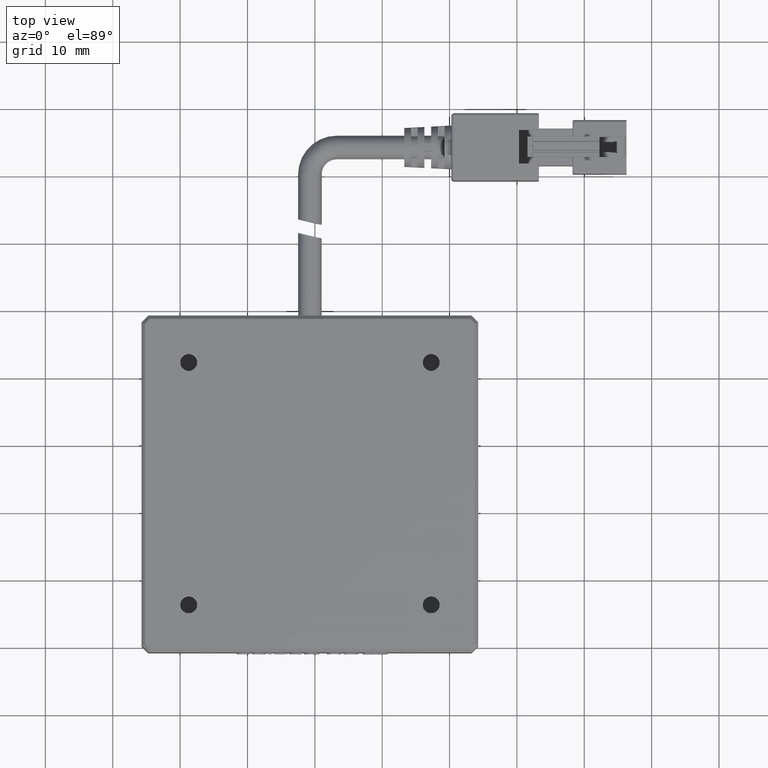
[diagram: clean part render]
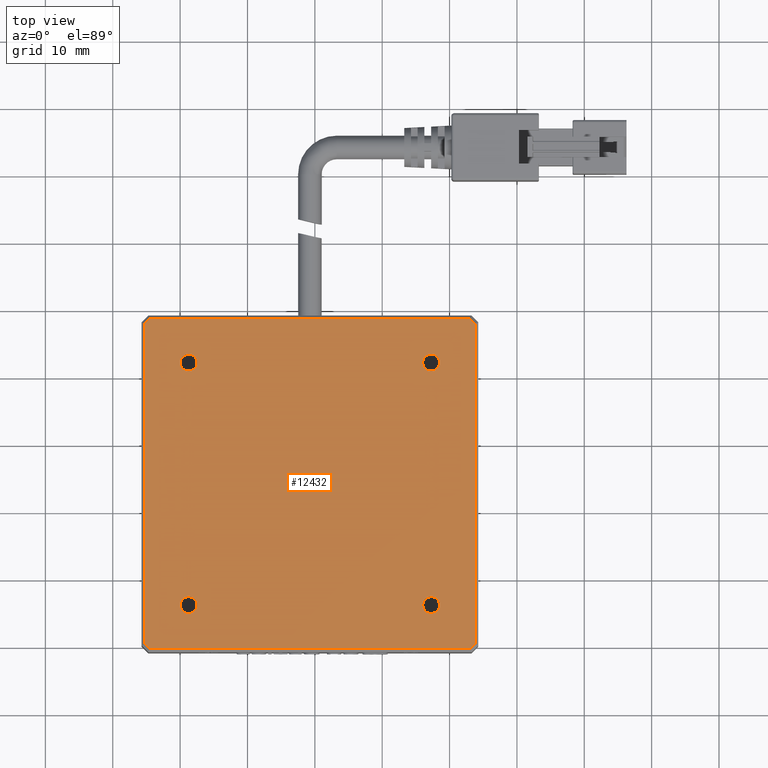
[diagram: same view with one face highlighted and labeled with its STEP entity id]
A machine part, top view. The second image highlights one B-rep face of the part: STEP entity #12432.
In plain terms, the highlighted planar face has unit normal (0, 0, -1).
Its self-contained STEP definition (entity closure, byte-faithful):
#100 = EDGE_CURVE ( 'NONE', #7006, #9659, #36711, .T. ) ;
#404 = EDGE_CURVE ( 'NONE', #3694, #6840, #39669, .T. ) ;
#1345 = FACE_BOUND ( 'NONE', #25588, .T. ) ;
#1472 = AXIS2_PLACEMENT_3D ( 'NONE', #22653, #3146, #25906 ) ;
#1871 = CIRCLE ( 'NONE', #36450, 1.250000000000001100 ) ;
#2097 = VERTEX_POINT ( 'NONE', #21587 ) ;
#2286 = LINE ( 'NONE', #36958, #18543 ) ;
#2449 = DIRECTION ( 'NONE',  ( 1.000000000000000000, 0.0000000000000000000, 0.0000000000000000000 ) ) ;
#2601 = LINE ( 'NONE', #28094, #35139 ) ;
#3146 = DIRECTION ( 'NONE',  ( -0.0000000000000000000, -0.0000000000000000000, 1.000000000000000000 ) ) ;
#3174 = ORIENTED_EDGE ( 'NONE', *, *, #7853, .F. ) ;
#3335 = CARTESIAN_POINT ( 'NONE',  ( 43.76702531645570800, 14.21113924050633600, 2.250000000000000900 ) ) ;
#3694 = VERTEX_POINT ( 'NONE', #35536 ) ;
#3701 = CIRCLE ( 'NONE', #16103, 1.250000000000001100 ) ;
#4103 = CARTESIAN_POINT ( 'NONE',  ( 43.05991853526914800, 38.71113924050632000, 2.250000000000000900 ) ) ;
#4314 = VERTEX_POINT ( 'NONE', #42024 ) ;
#4674 = DIRECTION ( 'NONE',  ( 1.000000000000000000, -0.0000000000000000000, 0.0000000000000000000 ) ) ;
#4865 = DIRECTION ( 'NONE',  ( 0.0000000000000000000, 0.0000000000000000000, -1.000000000000000000 ) ) ;
#4970 = CARTESIAN_POINT ( 'NONE',  ( -5.232974683544267900, -9.581753978307105500, 2.250000000000001800 ) ) ;
#5012 = AXIS2_PLACEMENT_3D ( 'NONE', #13184, #35948, #16455 ) ;
#5147 = AXIS2_PLACEMENT_3D ( 'NONE', #9560, #32311, #12826 ) ;
#5924 = CARTESIAN_POINT ( 'NONE',  ( -5.232974683544267900, 38.00403245931977400, 2.250000000000000000 ) ) ;
#6073 = VERTEX_POINT ( 'NONE', #21219 ) ;
#6489 = EDGE_LOOP ( 'NONE', ( #34504, #10557 ) ) ;
#6791 = CARTESIAN_POINT ( 'NONE',  ( 38.51702531645572200, 32.21113924050634100, 2.250000000000000900 ) ) ;
#6840 = VERTEX_POINT ( 'NONE', #19124 ) ;
#7006 = VERTEX_POINT ( 'NONE', #16556 ) ;
#7361 = ORIENTED_EDGE ( 'NONE', *, *, #36655, .F. ) ;
#7767 = ORIENTED_EDGE ( 'NONE', *, *, #100, .F. ) ;
#7853 = EDGE_CURVE ( 'NONE', #35405, #4314, #17793, .T. ) ;
#7990 = PLANE ( 'NONE',  #29038 ) ;
#8013 = LINE ( 'NONE', #3335, #40557 ) ;
#8108 = AXIS2_PLACEMENT_3D ( 'NONE', #37157, #17639, #40398 ) ;
#8171 = VERTEX_POINT ( 'NONE', #24519 ) ;
#8957 = ORIENTED_EDGE ( 'NONE', *, *, #404, .F. ) ;
#9120 = CARTESIAN_POINT ( 'NONE',  ( 43.76702531645570800, -9.581753978307098400, 2.250000000000000000 ) ) ;
#9277 = EDGE_CURVE ( 'NONE', #40411, #38759, #2601, .T. ) ;
#9560 = CARTESIAN_POINT ( 'NONE',  ( 37.26702531645571500, -3.788860759493665900, 2.250000000000000900 ) ) ;
#9659 = VERTEX_POINT ( 'NONE', #39814 ) ;
#10557 = ORIENTED_EDGE ( 'NONE', *, *, #31549, .F. ) ;
#10640 = EDGE_CURVE ( 'NONE', #40619, #40411, #25341, .T. ) ;
#10940 = VERTEX_POINT ( 'NONE', #13709 ) ;
#11308 = ORIENTED_EDGE ( 'NONE', *, *, #30624, .F. ) ;
#11967 = LINE ( 'NONE', #4103, #30297 ) ;
#12236 = DIRECTION ( 'NONE',  ( -0.0000000000000000000, -0.0000000000000000000, 1.000000000000000000 ) ) ;
#12432 = ADVANCED_FACE ( 'NONE', ( #19669, #18635, #1345, #34922, #26285 ), #7990, .F. ) ;
#12591 = DIRECTION ( 'NONE',  ( -0.0000000000000000000, -0.0000000000000000000, 1.000000000000000000 ) ) ;
#12826 = DIRECTION ( 'NONE',  ( 1.000000000000000000, 0.0000000000000000000, 0.0000000000000000000 ) ) ;
#13184 = CARTESIAN_POINT ( 'NONE',  ( 37.26702531645571500, 32.21113924050634100, 2.250000000000000900 ) ) ;
#13299 = EDGE_CURVE ( 'NONE', #6073, #8171, #11967, .T. ) ;
#13475 = VECTOR ( 'NONE', #16948, 1000.000000000000000 ) ;
#13709 = CARTESIAN_POINT ( 'NONE',  ( 0.01702531645570923300, -3.788860759493669000, 2.250000000000000900 ) ) ;
#14322 = ORIENTED_EDGE ( 'NONE', *, *, #9277, .F. ) ;
#14494 = LINE ( 'NONE', #26670, #13475 ) ;
#15305 = CARTESIAN_POINT ( 'NONE',  ( 2.517025316455711300, -3.788860759493669000, 2.250000000000000900 ) ) ;
#16103 = AXIS2_PLACEMENT_3D ( 'NONE', #32081, #12591, #35321 ) ;
#16135 = CARTESIAN_POINT ( 'NONE',  ( 37.26702531645571500, 32.21113924050634100, 2.250000000000000900 ) ) ;
#16455 = DIRECTION ( 'NONE',  ( 1.000000000000000000, 0.0000000000000000000, 0.0000000000000000000 ) ) ;
#16556 = CARTESIAN_POINT ( 'NONE',  ( 36.01702531645571500, -3.788860759493665900, 2.250000000000000900 ) ) ;
#16948 = DIRECTION ( 'NONE',  ( -0.7071067811865510100, -0.7071067811865441300, 0.0000000000000000000 ) ) ;
#17019 = CIRCLE ( 'NONE', #25459, 1.250000000000001100 ) ;
#17639 = DIRECTION ( 'NONE',  ( -0.0000000000000000000, -0.0000000000000000000, 1.000000000000000000 ) ) ;
#17793 = LINE ( 'NONE', #41221, #35124 ) ;
#18467 = DIRECTION ( 'NONE',  ( -1.000000000000000000, 0.0000000000000000000, -0.0000000000000000000 ) ) ;
#18543 = VECTOR ( 'NONE', #4674, 1000.000000000000000 ) ;
#18635 = FACE_BOUND ( 'NONE', #6489, .T. ) ;
#18825 = EDGE_CURVE ( 'NONE', #37663, #2097, #17019, .T. ) ;
#18956 = EDGE_CURVE ( 'NONE', #19883, #35405, #14494, .T. ) ;
#19124 = CARTESIAN_POINT ( 'NONE',  ( 2.517025316455704600, 32.21113924050634100, 2.250000000000000900 ) ) ;
#19411 = DIRECTION ( 'NONE',  ( 1.000000000000000000, 0.0000000000000000000, 0.0000000000000000000 ) ) ;
#19669 = FACE_OUTER_BOUND ( 'NONE', #26208, .T. ) ;
#19676 = ORIENTED_EDGE ( 'NONE', *, *, #10640, .F. ) ;
#19883 = VERTEX_POINT ( 'NONE', #9120 ) ;
#19952 = EDGE_CURVE ( 'NONE', #6840, #3694, #23507, .T. ) ;
#20488 = ORIENTED_EDGE ( 'NONE', *, *, #19952, .F. ) ;
#21219 = CARTESIAN_POINT ( 'NONE',  ( 43.05991853526914800, 38.71113924050632000, 2.250000000000001800 ) ) ;
#21587 = CARTESIAN_POINT ( 'NONE',  ( 36.01702531645571500, 32.21113924050634100, 2.250000000000000900 ) ) ;
#21953 = DIRECTION ( 'NONE',  ( -0.0000000000000000000, -0.0000000000000000000, 1.000000000000000000 ) ) ;
#22365 = ORIENTED_EDGE ( 'NONE', *, *, #29500, .F. ) ;
#22653 = CARTESIAN_POINT ( 'NONE',  ( 1.267025316455706800, 32.21113924050634100, 2.250000000000000900 ) ) ;
#22980 = EDGE_LOOP ( 'NONE', ( #27529, #22365 ) ) ;
#23507 = CIRCLE ( 'NONE', #1472, 1.249999999999997600 ) ;
#24117 = ORIENTED_EDGE ( 'NONE', *, *, #13299, .F. ) ;
#24410 = CARTESIAN_POINT ( 'NONE',  ( 19.26702531645571500, 14.21113924050633600, 2.250000000000000900 ) ) ;
#24519 = CARTESIAN_POINT ( 'NONE',  ( 43.76702531645570800, 38.00403245931975200, 2.250000000000001800 ) ) ;
#25341 = LINE ( 'NONE', #39050, #33917 ) ;
#25459 = AXIS2_PLACEMENT_3D ( 'NONE', #16135, #38894, #19411 ) ;
#25588 = EDGE_LOOP ( 'NONE', ( #33672, #7767 ) ) ;
#25906 = DIRECTION ( 'NONE',  ( 1.000000000000000000, 0.0000000000000000000, 0.0000000000000000000 ) ) ;
#26208 = EDGE_LOOP ( 'NONE', ( #28480, #3174, #32378, #7361, #24117, #11308, #14322, #19676 ) ) ;
#26285 = FACE_BOUND ( 'NONE', #33906, .T. ) ;
#26670 = CARTESIAN_POINT ( 'NONE',  ( 43.76702531645570800, -9.581753978307098400, 2.250000000000000900 ) ) ;
#27074 = EDGE_CURVE ( 'NONE', #9659, #7006, #1871, .T. ) ;
#27529 = ORIENTED_EDGE ( 'NONE', *, *, #18825, .F. ) ;
#27530 = AXIS2_PLACEMENT_3D ( 'NONE', #41396, #21953, #2449 ) ;
#27656 = DIRECTION ( 'NONE',  ( -1.000000000000000000, 0.0000000000000000000, -0.0000000000000000000 ) ) ;
#28094 = CARTESIAN_POINT ( 'NONE',  ( -5.232974683544267900, 38.00403245931977400, 2.250000000000000900 ) ) ;
#28277 = CARTESIAN_POINT ( 'NONE',  ( -4.525867902357726200, -10.28886075949365300, 2.250000000000000900 ) ) ;
#28480 = ORIENTED_EDGE ( 'NONE', *, *, #36465, .F. ) ;
#28958 = LINE ( 'NONE', #28277, #37555 ) ;
#29038 = AXIS2_PLACEMENT_3D ( 'NONE', #24410, #4865, #27656 ) ;
#29074 = CARTESIAN_POINT ( 'NONE',  ( 43.05991853526914100, -10.28886075949365300, 2.250000000000000000 ) ) ;
#29111 = CIRCLE ( 'NONE', #8108, 1.250000000000001100 ) ;
#29500 = EDGE_CURVE ( 'NONE', #2097, #37663, #30931, .T. ) ;
#30146 = DIRECTION ( 'NONE',  ( 0.7071067811865441300, -0.7071067811865510100, 0.0000000000000000000 ) ) ;
#30297 = VECTOR ( 'NONE', #30146, 1000.000000000000000 ) ;
#30624 = EDGE_CURVE ( 'NONE', #38759, #6073, #2286, .T. ) ;
#30931 = CIRCLE ( 'NONE', #5012, 1.250000000000001100 ) ;
#31195 = VERTEX_POINT ( 'NONE', #15305 ) ;
#31328 = DIRECTION ( 'NONE',  ( 0.7071067811865510100, 0.7071067811865441300, 0.0000000000000000000 ) ) ;
#31549 = EDGE_CURVE ( 'NONE', #10940, #31195, #29111, .T. ) ;
#31648 = DIRECTION ( 'NONE',  ( -0.7071067811865441300, 0.7071067811865510100, 0.0000000000000000000 ) ) ;
#31672 = DIRECTION ( 'NONE',  ( 0.0000000000000000000, 1.000000000000000000, 0.0000000000000000000 ) ) ;
#31729 = CARTESIAN_POINT ( 'NONE',  ( 37.26702531645571500, -3.788860759493665900, 2.250000000000000900 ) ) ;
#31944 = CARTESIAN_POINT ( 'NONE',  ( -4.525867902357719100, 38.71113924050632000, 2.250000000000000000 ) ) ;
#32081 = CARTESIAN_POINT ( 'NONE',  ( 1.267025316455710400, -3.788860759493669000, 2.250000000000000900 ) ) ;
#32311 = DIRECTION ( 'NONE',  ( -0.0000000000000000000, -0.0000000000000000000, 1.000000000000000000 ) ) ;
#32378 = ORIENTED_EDGE ( 'NONE', *, *, #18956, .F. ) ;
#33672 = ORIENTED_EDGE ( 'NONE', *, *, #27074, .F. ) ;
#33906 = EDGE_LOOP ( 'NONE', ( #20488, #8957 ) ) ;
#33917 = VECTOR ( 'NONE', #31672, 1000.000000000000000 ) ;
#34504 = ORIENTED_EDGE ( 'NONE', *, *, #35274, .F. ) ;
#34922 = FACE_BOUND ( 'NONE', #22980, .T. ) ;
#34976 = DIRECTION ( 'NONE',  ( 1.000000000000000000, 0.0000000000000000000, 0.0000000000000000000 ) ) ;
#35124 = VECTOR ( 'NONE', #18467, 1000.000000000000000 ) ;
#35139 = VECTOR ( 'NONE', #31328, 999.9999999999998900 ) ;
#35274 = EDGE_CURVE ( 'NONE', #31195, #10940, #3701, .T. ) ;
#35321 = DIRECTION ( 'NONE',  ( 1.000000000000000000, 0.0000000000000000000, 0.0000000000000000000 ) ) ;
#35405 = VERTEX_POINT ( 'NONE', #29074 ) ;
#35536 = CARTESIAN_POINT ( 'NONE',  ( 0.01702531645570923300, 32.21113924050634100, 2.250000000000000900 ) ) ;
#35948 = DIRECTION ( 'NONE',  ( -0.0000000000000000000, -0.0000000000000000000, 1.000000000000000000 ) ) ;
#36450 = AXIS2_PLACEMENT_3D ( 'NONE', #31729, #12236, #34976 ) ;
#36465 = EDGE_CURVE ( 'NONE', #4314, #40619, #28958, .T. ) ;
#36655 = EDGE_CURVE ( 'NONE', #8171, #19883, #8013, .T. ) ;
#36711 = CIRCLE ( 'NONE', #5147, 1.250000000000001100 ) ;
#36958 = CARTESIAN_POINT ( 'NONE',  ( 19.26702531645571500, 38.71113924050632000, 2.250000000000000900 ) ) ;
#37157 = CARTESIAN_POINT ( 'NONE',  ( 1.267025316455710400, -3.788860759493669000, 2.250000000000000900 ) ) ;
#37555 = VECTOR ( 'NONE', #31648, 999.9999999999998900 ) ;
#37663 = VERTEX_POINT ( 'NONE', #6791 ) ;
#38759 = VERTEX_POINT ( 'NONE', #31944 ) ;
#38894 = DIRECTION ( 'NONE',  ( -0.0000000000000000000, -0.0000000000000000000, 1.000000000000000000 ) ) ;
#39050 = CARTESIAN_POINT ( 'NONE',  ( -5.232974683544267900, 14.21113924050633600, 2.250000000000000900 ) ) ;
#39145 = DIRECTION ( 'NONE',  ( -0.0000000000000000000, -1.000000000000000000, -0.0000000000000000000 ) ) ;
#39669 = CIRCLE ( 'NONE', #27530, 1.249999999999997600 ) ;
#39814 = CARTESIAN_POINT ( 'NONE',  ( 38.51702531645572200, -3.788860759493665900, 2.250000000000000900 ) ) ;
#40398 = DIRECTION ( 'NONE',  ( 1.000000000000000000, 0.0000000000000000000, 0.0000000000000000000 ) ) ;
#40411 = VERTEX_POINT ( 'NONE', #5924 ) ;
#40557 = VECTOR ( 'NONE', #39145, 1000.000000000000000 ) ;
#40619 = VERTEX_POINT ( 'NONE', #4970 ) ;
#41221 = CARTESIAN_POINT ( 'NONE',  ( 19.26702531645571500, -10.28886075949365300, 2.250000000000000900 ) ) ;
#41396 = CARTESIAN_POINT ( 'NONE',  ( 1.267025316455706800, 32.21113924050634100, 2.250000000000000900 ) ) ;
#42024 = CARTESIAN_POINT ( 'NONE',  ( -4.525867902357729700, -10.28886075949365000, 2.250000000000000900 ) ) ;